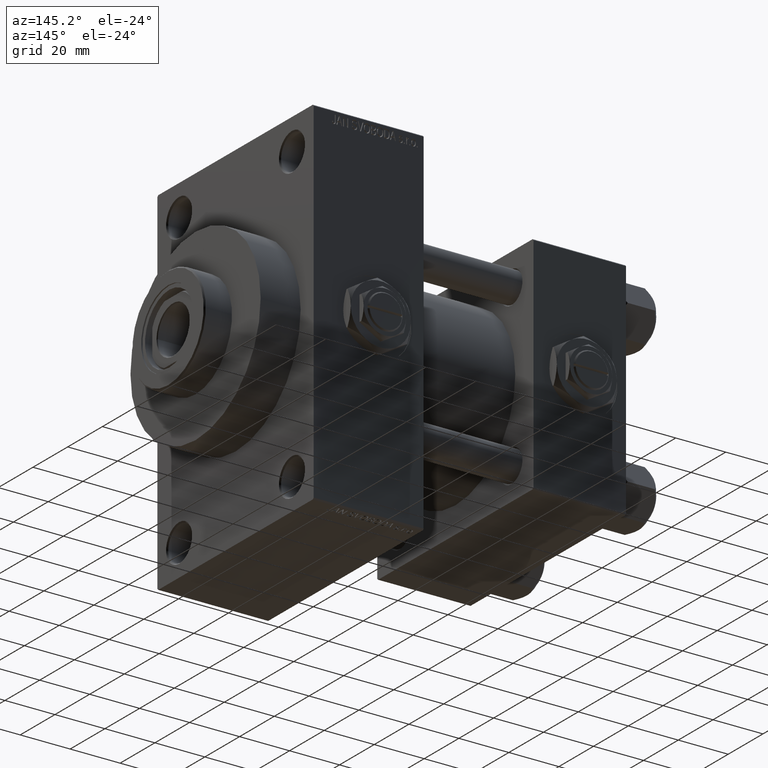
[diagram: clean part render]
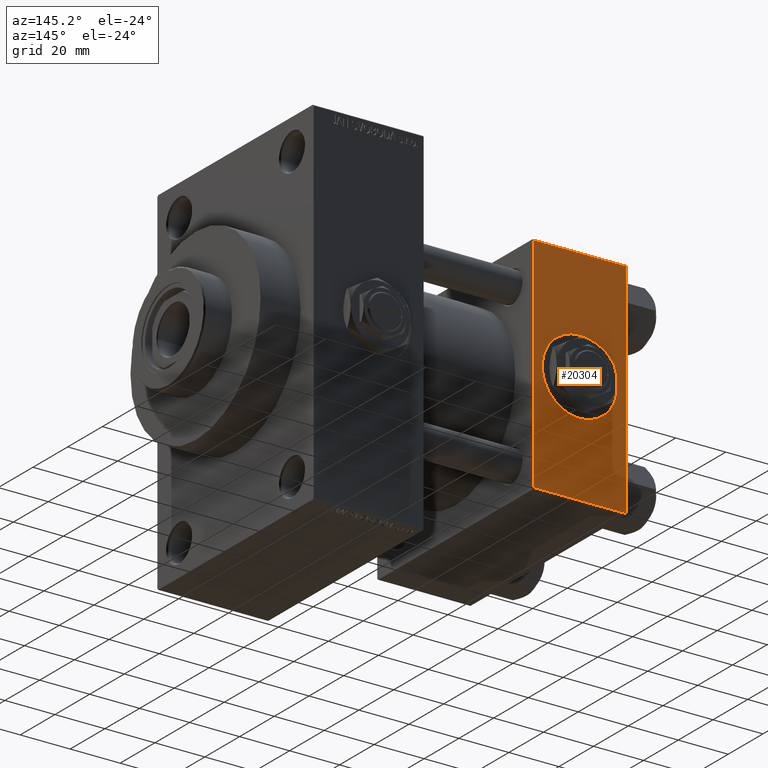
[diagram: same view with one face highlighted and labeled with its STEP entity id]
A machine part, auxiliary view. The second image highlights one B-rep face of the part: STEP entity #20304.
In plain terms, the highlighted planar face has unit normal (0, 1, 0).
Its self-contained STEP definition (entity closure, byte-faithful):
#2823 = ORIENTED_EDGE ( 'NONE', *, *, #14821, .F. ) ;
#7488 = VERTEX_POINT ( 'NONE', #22358 ) ;
#7545 = VECTOR ( 'NONE', #12526, 1000.000000000000000 ) ;
#9183 = CARTESIAN_POINT ( 'NONE',  ( 0.000000000000000000, 44.99999999999998579, -44.49999999999995737 ) ) ;
#10652 = ORIENTED_EDGE ( 'NONE', *, *, #10971, .T. ) ;
#10971 = EDGE_CURVE ( 'NONE', #47584, #18504, #45770, .T. ) ;
#11152 = EDGE_CURVE ( 'NONE', #7488, #38419, #19810, .T. ) ;
#11404 = CARTESIAN_POINT ( 'NONE',  ( 18.50000000000000000, 44.99999999999998579, 15.00000000000000178 ) ) ;
#12526 = DIRECTION ( 'NONE',  ( -1.000000000000000000, 0.000000000000000000, 0.000000000000000000 ) ) ;
#14821 = EDGE_CURVE ( 'NONE', #34692, #32920, #37570, .T. ) ;
#16382 = CARTESIAN_POINT ( 'NONE',  ( 37.00000000000000000, 44.99999999999998579, 44.50000000000001421 ) ) ;
#18504 = VERTEX_POINT ( 'NONE', #37405 ) ;
#19810 = LINE ( 'NONE', #46744, #37357 ) ;
#20049 = DIRECTION ( 'NONE',  ( 0.000000000000000000, 0.000000000000000000, -1.000000000000000000 ) ) ;
#20304 = ADVANCED_FACE ( 'NONE', ( #23679, #38890 ), #42156, .T. ) ;
#20993 = ORIENTED_EDGE ( 'NONE', *, *, #30348, .T. ) ;
#22358 = CARTESIAN_POINT ( 'NONE',  ( 0.000000000000000000, 44.99999999999998579, 44.50000000000001421 ) ) ;
#22938 = DIRECTION ( 'NONE',  ( 0.000000000000000000, 0.000000000000000000, 1.000000000000000000 ) ) ;
#23679 = FACE_BOUND ( 'NONE', #31020, .T. ) ;
#23770 = EDGE_CURVE ( 'NONE', #32920, #34692, #36286, .T. ) ;
#26072 = DIRECTION ( 'NONE',  ( 0.000000000000000000, 0.000000000000000000, -1.000000000000000000 ) ) ;
#26340 = ORIENTED_EDGE ( 'NONE', *, *, #23770, .F. ) ;
#26925 = EDGE_CURVE ( 'NONE', #18504, #38419, #42958, .T. ) ;
#28712 = CARTESIAN_POINT ( 'NONE',  ( 18.50000000000000000, 44.99999999999998579, 0.000000000000000000 ) ) ;
#28885 = AXIS2_PLACEMENT_3D ( 'NONE', #45888, #42390, #46618 ) ;
#30335 = CARTESIAN_POINT ( 'NONE',  ( 18.50000000000000355, 44.99999999999998579, -15.00000000000000178 ) ) ;
#30348 = EDGE_CURVE ( 'NONE', #7488, #47584, #35358, .T. ) ;
#31020 = EDGE_LOOP ( 'NONE', ( #2823, #26340 ) ) ;
#32920 = VERTEX_POINT ( 'NONE', #30335 ) ;
#34664 = AXIS2_PLACEMENT_3D ( 'NONE', #28712, #43930, #40192 ) ;
#34692 = VERTEX_POINT ( 'NONE', #11404 ) ;
#35358 = LINE ( 'NONE', #16382, #41643 ) ;
#36286 = CIRCLE ( 'NONE', #34664, 15.00000000000000178 ) ;
#37357 = VECTOR ( 'NONE', #20049, 1000.000000000000000 ) ;
#37405 = CARTESIAN_POINT ( 'NONE',  ( 37.00000000000000000, 44.99999999999998579, -44.49999999999995737 ) ) ;
#37570 = CIRCLE ( 'NONE', #43962, 15.00000000000000178 ) ;
#38132 = VECTOR ( 'NONE', #26072, 1000.000000000000000 ) ;
#38419 = VERTEX_POINT ( 'NONE', #9183 ) ;
#38890 = FACE_OUTER_BOUND ( 'NONE', #45307, .T. ) ;
#40192 = DIRECTION ( 'NONE',  ( 0.000000000000000000, 0.000000000000000000, 1.000000000000000000 ) ) ;
#41408 = CARTESIAN_POINT ( 'NONE',  ( 18.50000000000000000, 44.99999999999998579, 0.000000000000000000 ) ) ;
#41643 = VECTOR ( 'NONE', #46819, 1000.000000000000000 ) ;
#42119 = ORIENTED_EDGE ( 'NONE', *, *, #26925, .T. ) ;
#42156 = PLANE ( 'NONE',  #28885 ) ;
#42390 = DIRECTION ( 'NONE',  ( -0.000000000000000000, 1.000000000000000000, 0.000000000000000000 ) ) ;
#42958 = LINE ( 'NONE', #46203, #7545 ) ;
#43930 = DIRECTION ( 'NONE',  ( 0.000000000000000000, 1.000000000000000000, 0.000000000000000000 ) ) ;
#43962 = AXIS2_PLACEMENT_3D ( 'NONE', #41408, #49121, #22938 ) ;
#45307 = EDGE_LOOP ( 'NONE', ( #10652, #42119, #47329, #20993 ) ) ;
#45770 = LINE ( 'NONE', #49007, #38132 ) ;
#45888 = CARTESIAN_POINT ( 'NONE',  ( 37.00000000000000000, 44.99999999999998579, 45.00000000000001421 ) ) ;
#46203 = CARTESIAN_POINT ( 'NONE',  ( 37.00000000000000000, 44.99999999999998579, -44.49999999999998579 ) ) ;
#46618 = DIRECTION ( 'NONE',  ( 0.000000000000000000, -0.000000000000000000, 1.000000000000000000 ) ) ;
#46744 = CARTESIAN_POINT ( 'NONE',  ( 0.000000000000000000, 44.99999999999998579, 45.00000000000001421 ) ) ;
#46819 = DIRECTION ( 'NONE',  ( 1.000000000000000000, 0.000000000000000000, 0.000000000000000000 ) ) ;
#47329 = ORIENTED_EDGE ( 'NONE', *, *, #11152, .F. ) ;
#47584 = VERTEX_POINT ( 'NONE', #48196 ) ;
#48196 = CARTESIAN_POINT ( 'NONE',  ( 37.00000000000000000, 44.99999999999998579, 44.50000000000001421 ) ) ;
#49007 = CARTESIAN_POINT ( 'NONE',  ( 37.00000000000000000, 44.99999999999998579, 45.00000000000001421 ) ) ;
#49121 = DIRECTION ( 'NONE',  ( 0.000000000000000000, 1.000000000000000000, 0.000000000000000000 ) ) ;